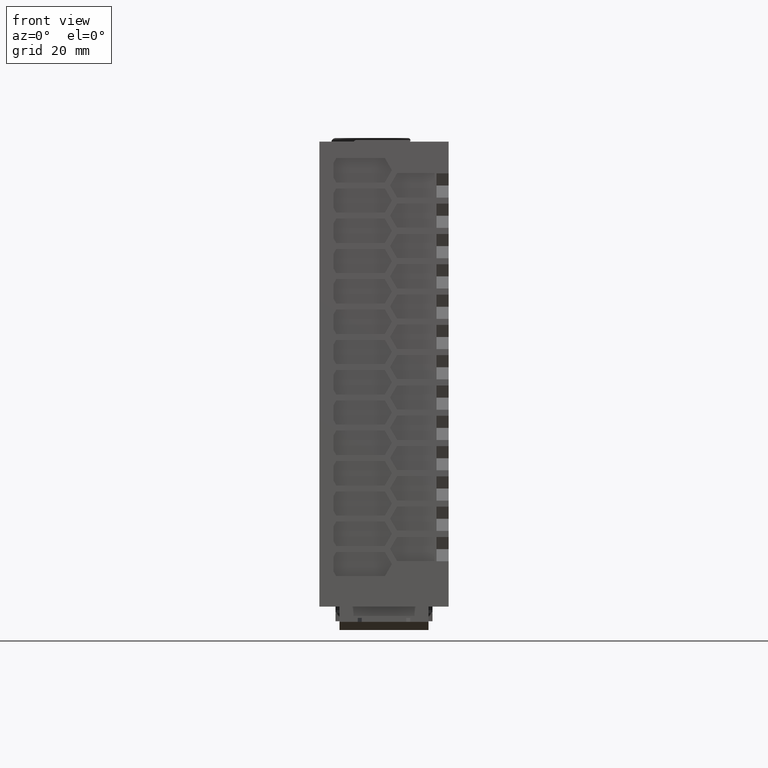
[diagram: clean part render]
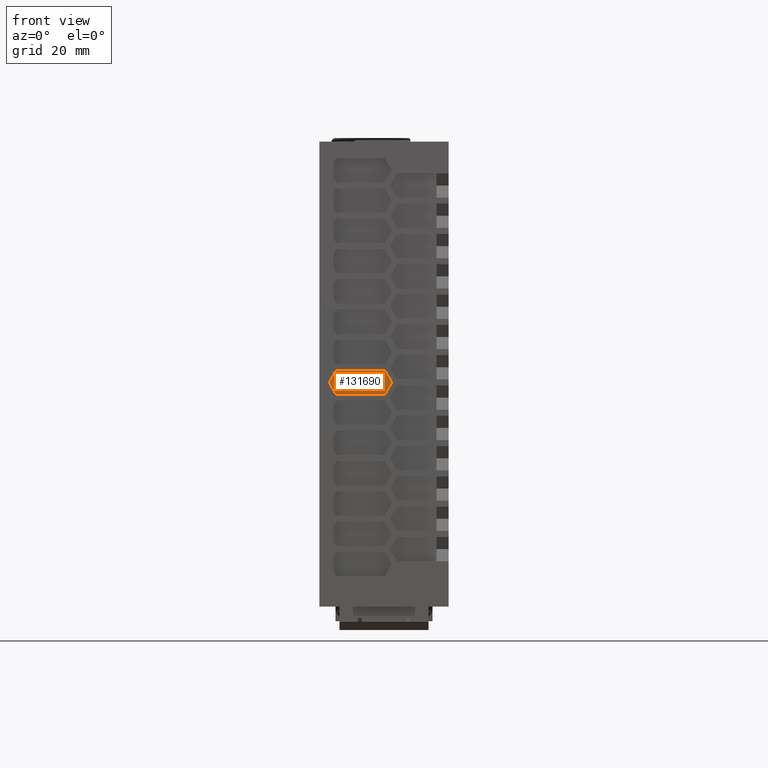
[diagram: same view with one face highlighted and labeled with its STEP entity id]
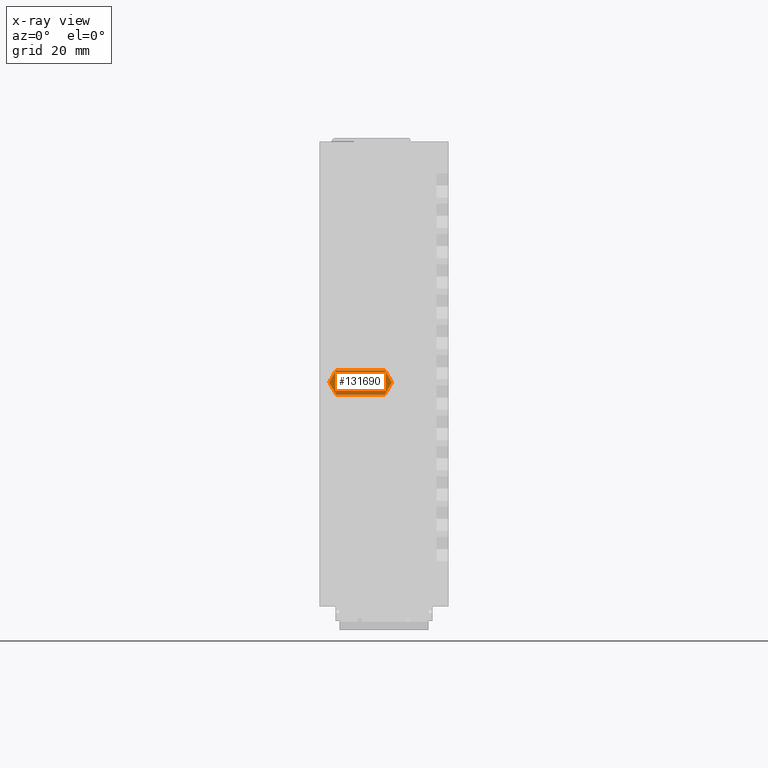
[diagram: x-ray of the same camera — body ghosted, the highlighted face saturated]
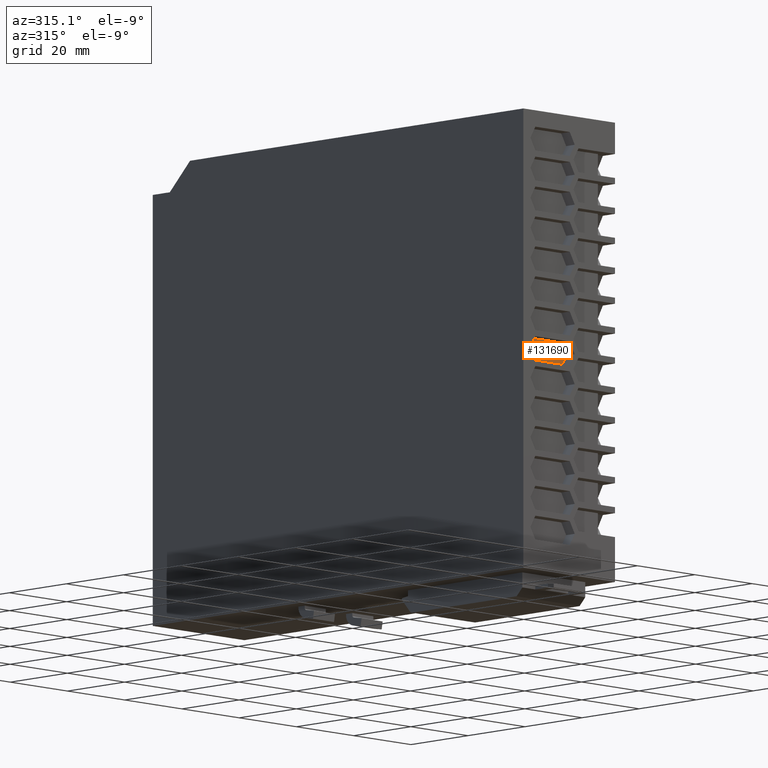
[diagram: same view with one face highlighted and labeled with its STEP entity id]
A machine part, front view. The second image highlights one B-rep face of the part: STEP entity #131690.
The next image is the same camera in x-ray: the body ghosted, the highlighted face saturated — about 0% of this face is hidden behind the body in this view.
A second angle (auxiliary view) of the same face is appended — the face is thin or edge-on in the first view.
In plain terms, the highlighted planar face has unit normal (0, 1, 0).
Its self-contained STEP definition (entity closure, byte-faithful):
#49910=CARTESIAN_POINT('',(16.2009491924313,-62.,-55.5000000000005));
#49920=VERTEX_POINT('',#49910);
#49950=CARTESIAN_POINT('',(16.2009491924304,-62.,-55.5000000000006));
#49960=DIRECTION('',(-1.,0.,0.));
#49970=VECTOR('',#49960,1.);
#49980=LINE('',#49950,#49970);
#49990=CARTESIAN_POINT('',(4.16505080757037,-62.,-55.5000000000006));
#50000=VERTEX_POINT('',#49990);
#50010=EDGE_CURVE('',#49920,#50000,#49980,.T.);
#50310=CARTESIAN_POINT('',(2.43300000000031,-62.,-58.5000000000008));
#50320=VERTEX_POINT('',#50310);
#50350=CARTESIAN_POINT('',(2.43300000000037,-62.,-58.5000000000006));
#50360=DIRECTION('',(0.500000000000017,0.,-0.866025403784429));
#50370=VECTOR('',#50360,1.);
#50380=LINE('',#50350,#50370);
#50390=CARTESIAN_POINT('',(4.16505080756943,-62.,-61.5000000000008));
#50400=VERTEX_POINT('',#50390);
#50410=EDGE_CURVE('',#50320,#50400,#50380,.T.);
#113150=CARTESIAN_POINT('',(17.9329999999994,-62.,-58.5000000000005));
#113160=VERTEX_POINT('',#113150);
#113190=CARTESIAN_POINT('',(17.9330000000004,-62.,-58.5000000000006));
#113200=DIRECTION('',(-0.500000000000017,0.,0.866025403784429));
#113210=VECTOR('',#113200,1.);
#113220=LINE('',#113190,#113210);
#113230=EDGE_CURVE('',#113160,#49920,#113220,.T.);
#131390=CARTESIAN_POINT('',(20.4796640649271,-62.,-4.61828725483505));
#131400=DIRECTION('',(0.,1.,-0.));
#131410=DIRECTION('',(-1.,0.,0.));
#131420=AXIS2_PLACEMENT_3D('',#131390,#131400,#131410);
#131430=PLANE('',#131420);
#131440=CARTESIAN_POINT('',(4.16505080756937,-62.,-61.5000000000006));
#131450=DIRECTION('',(1.,0.,0.));
#131460=VECTOR('',#131450,1.);
#131470=LINE('',#131440,#131460);
#131480=CARTESIAN_POINT('',(16.2009491924294,-62.,-61.5000000000006));
#131490=VERTEX_POINT('',#131480);
#131500=EDGE_CURVE('',#50400,#131490,#131470,.T.);
#131510=ORIENTED_EDGE('',*,*,#131500,.T.);
#131520=ORIENTED_EDGE('',*,*,#50410,.T.);
#131530=CARTESIAN_POINT('',(4.16505080756937,-62.,-55.5000000000006));
#131540=DIRECTION('',(-0.500000000000017,0.,-0.866025403784429));
#131550=VECTOR('',#131540,1.);
#131560=LINE('',#131530,#131550);
#131570=EDGE_CURVE('',#50000,#50320,#131560,.T.);
#131580=ORIENTED_EDGE('',*,*,#131570,.T.);
#131590=ORIENTED_EDGE('',*,*,#50010,.T.);
#131600=ORIENTED_EDGE('',*,*,#113230,.T.);
#131610=CARTESIAN_POINT('',(16.2009491924304,-62.,-61.5000000000006));
#131620=DIRECTION('',(0.500000000000017,0.,0.866025403784429));
#131630=VECTOR('',#131620,1.);
#131640=LINE('',#131610,#131630);
#131650=EDGE_CURVE('',#131490,#113160,#131640,.T.);
#131660=ORIENTED_EDGE('',*,*,#131650,.T.);
#131670=EDGE_LOOP('',(#131660,#131600,#131590,#131580,#131520,#131510));
#131680=FACE_OUTER_BOUND('',#131670,.T.);
#131690=ADVANCED_FACE('',(#131680),#131430,.F.);